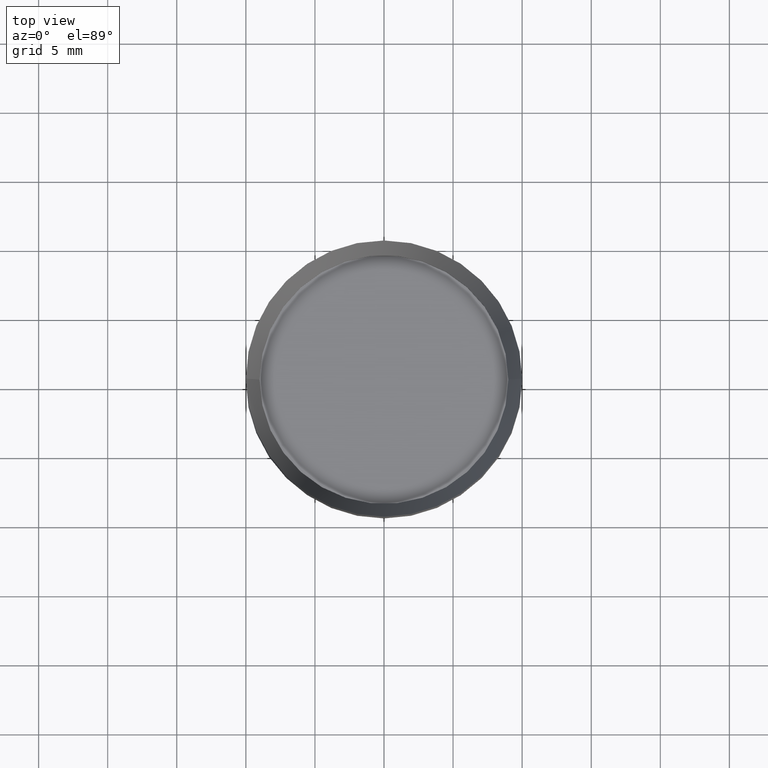
[diagram: clean part render]
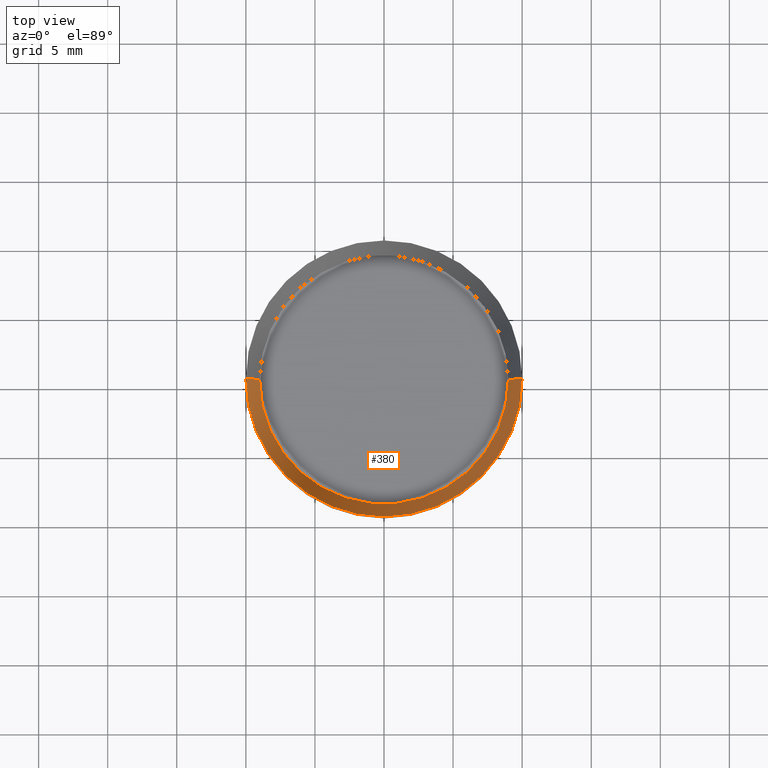
[diagram: same view with one face highlighted and labeled with its STEP entity id]
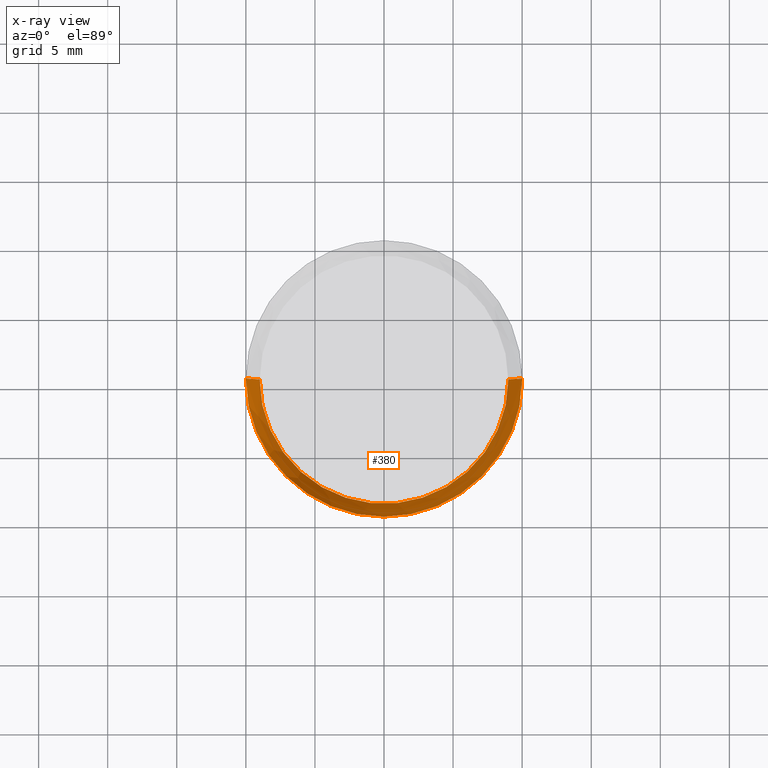
[diagram: x-ray of the same camera — body ghosted, the highlighted face saturated]
A machine part, top view. The second image highlights one B-rep face of the part: STEP entity #380.
The next image is the same camera in x-ray: the body ghosted, the highlighted face saturated — about 0% of this face is hidden behind the body in this view.
In plain terms, the highlighted conical surface has half-angle 15 deg.
Its self-contained STEP definition (entity closure, byte-faithful):
#7 = AXIS2_PLACEMENT_3D ( 'NONE', #323, #282, #431 ) ;
#8 = VECTOR ( 'NONE', #206, 39.37007874015748854 ) ;
#10 = CARTESIAN_POINT ( 'NONE',  ( -0.3936999999999999389, 3.711672783926467705E-15, 0.2618561992778351555 ) ) ;
#17 = DIRECTION ( 'NONE',  ( 1.000000000000000000, -6.982962677686266711E-15, 0.000000000000000000 ) ) ;
#32 = LINE ( 'NONE', #464, #203 ) ;
#43 = ORIENTED_EDGE ( 'NONE', *, *, #450, .T. ) ;
#48 = CARTESIAN_POINT ( 'NONE',  ( -6.403611670401447787E-30, 9.142660332389533129E-16, 0.2618561992778351555 ) ) ;
#55 = ORIENTED_EDGE ( 'NONE', *, *, #207, .F. ) ;
#69 = DIRECTION ( 'NONE',  ( 0.2588190451025211836, 1.565188264969622559E-15, 0.9659258262890679791 ) ) ;
#70 = CARTESIAN_POINT ( 'NONE',  ( -2.812289127112907395E-30, 4.015203539669618446E-16, 0.1150000000000000189 ) ) ;
#80 = CARTESIAN_POINT ( 'NONE',  ( -0.3936999999999999389, 3.711672783926467705E-15, 0.2618561992778351555 ) ) ;
#81 = EDGE_CURVE ( 'NONE', #222, #139, #337, .T. ) ;
#88 = ORIENTED_EDGE ( 'NONE', *, *, #224, .F. ) ;
#95 = ORIENTED_EDGE ( 'NONE', *, *, #81, .T. ) ;
#136 = CONICAL_SURFACE ( 'NONE', #389, 0.3936999999999999389, 0.2617993877991499074 ) ;
#139 = VERTEX_POINT ( 'NONE', #375 ) ;
#175 = CARTESIAN_POINT ( 'NONE',  ( 0.3936999999999999389, -1.834926372966129509E-15, 0.2618561992778351555 ) ) ;
#185 = DIRECTION ( 'NONE',  ( -2.445468806185136597E-29, 3.491481338843145583E-15, 1.000000000000000000 ) ) ;
#200 = DIRECTION ( 'NONE',  ( 2.445468806185136597E-29, -3.491481338843145583E-15, -1.000000000000000000 ) ) ;
#203 = VECTOR ( 'NONE', #69, 39.37007874015748854 ) ;
#206 = DIRECTION ( 'NONE',  ( -0.2588190451025211836, 5.211531920934547886E-15, 0.9659258262890679791 ) ) ;
#207 = EDGE_CURVE ( 'NONE', #437, #427, #306, .T. ) ;
#218 = FACE_OUTER_BOUND ( 'NONE', #325, .T. ) ;
#222 = VERTEX_POINT ( 'NONE', #354 ) ;
#224 = EDGE_CURVE ( 'NONE', #222, #437, #32, .T. ) ;
#230 = AXIS2_PLACEMENT_3D ( 'NONE', #70, #200, #351 ) ;
#282 = DIRECTION ( 'NONE',  ( 2.445468806185136597E-29, -3.491481338843145583E-15, -1.000000000000000000 ) ) ;
#306 = CIRCLE ( 'NONE', #7, 0.3936999999999999389 ) ;
#323 = CARTESIAN_POINT ( 'NONE',  ( -6.403611670401447787E-30, 9.142660332389533129E-16, 0.2618561992778351555 ) ) ;
#325 = EDGE_LOOP ( 'NONE', ( #95, #43, #55, #88 ) ) ;
#337 = CIRCLE ( 'NONE', #230, 0.3543499999999999428 ) ;
#351 = DIRECTION ( 'NONE',  ( -1.000000000000000000, 6.982962677686266711E-15, 0.000000000000000000 ) ) ;
#354 = CARTESIAN_POINT ( 'NONE',  ( 0.3543499999999999428, -1.953909421918648105E-15, 0.1150000000000000189 ) ) ;
#375 = CARTESIAN_POINT ( 'NONE',  ( -0.3543499999999999428, 3.315500661029671558E-15, 0.1150000000000000189 ) ) ;
#380 = ADVANCED_FACE ( 'NONE', ( #218 ), #136, .F. ) ;
#389 = AXIS2_PLACEMENT_3D ( 'NONE', #48, #185, #17 ) ;
#394 = LINE ( 'NONE', #80, #8 ) ;
#427 = VERTEX_POINT ( 'NONE', #10 ) ;
#431 = DIRECTION ( 'NONE',  ( -1.000000000000000000, 6.982962677686266711E-15, 0.000000000000000000 ) ) ;
#437 = VERTEX_POINT ( 'NONE', #175 ) ;
#450 = EDGE_CURVE ( 'NONE', #139, #427, #394, .T. ) ;
#464 = CARTESIAN_POINT ( 'NONE',  ( 0.3936999999999999389, -1.834926372966129509E-15, 0.2618561992778351555 ) ) ;